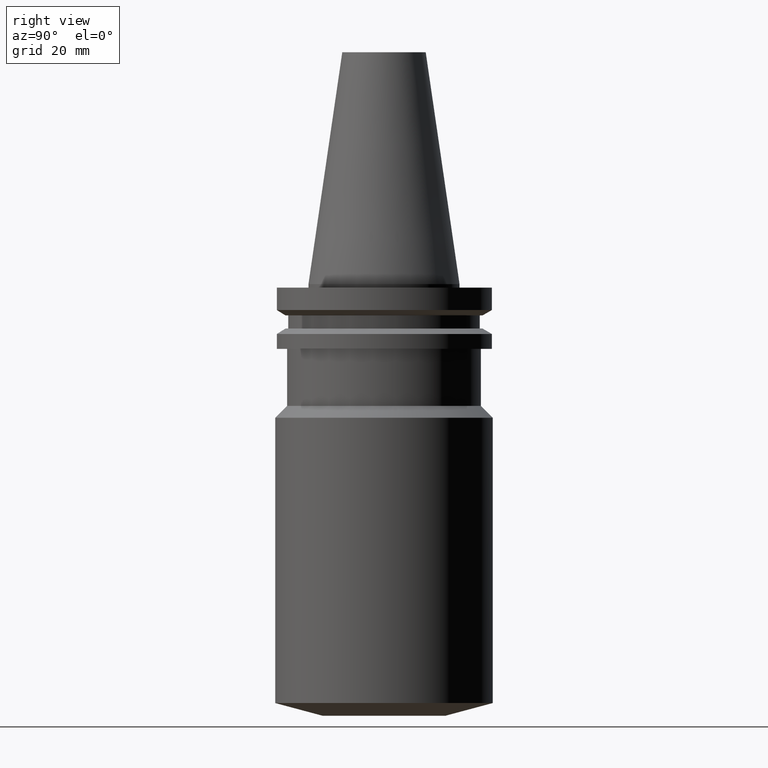
[diagram: clean part render]
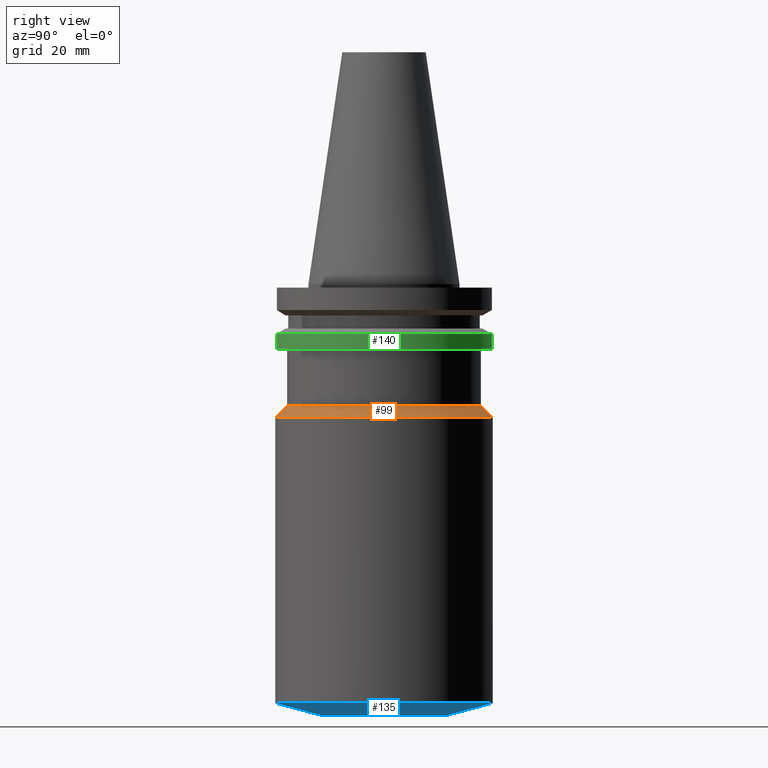
[diagram: same view with three faces highlighted in distinct colors, each labeled with its STEP entity id]
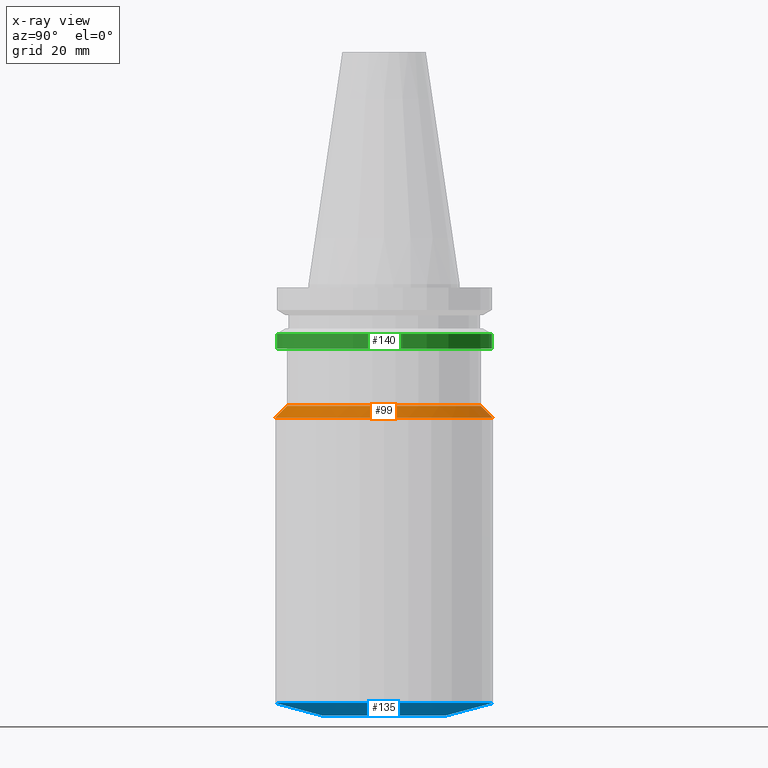
[diagram: x-ray of the same camera — body ghosted, the three highlighted faces saturated]
A machine part, right view with three faces highlighted in distinct colors.
The next image is the same camera in x-ray (body ghosted, the three faces saturated) — at least one of them is partly hidden behind the body in this view.
Their STEP definitions:

[orange] entity #99 — the highlighted conical surface has half-angle 45 deg.
#93=EDGE_CURVE('Unnamed[1]',#216,#216,#217,.T.);
#99=ADVANCED_FACE('Unnamed[1]',(#225,#226),#227,.T.);
#108=EDGE_CURVE('Unnamed[1]',#240,#240,#241,.T.);
#216=VERTEX_POINT('',#371);
#217=CIRCLE('',#372,28.4999999999991);
#225=FACE_BOUND('',#382,.T.);
#226=FACE_BOUND('',#383,.T.);
#227=CONICAL_SURFACE('',#384,30.2500000000389,0.785398163397475);
#240=VERTEX_POINT('',#401);
#241=CIRCLE('',#402,32.0000000000786);
#371=CARTESIAN_POINT('',(2.19211777047378E-015,28.4999999999991,-35.8000000000003));
#372=AXIS2_PLACEMENT_3D('',#530,#531,#532);
#382=EDGE_LOOP('',(#540));
#383=EDGE_LOOP('',(#541));
#384=AXIS2_PLACEMENT_3D('',#542,#543,#544);
#401=CARTESIAN_POINT('',(2.40643096032942E-015,32.0000000000786,-39.3000000000795));
#402=AXIS2_PLACEMENT_3D('',#557,#558,#559);
#530=CARTESIAN_POINT('',(2.19211777047378E-015,4.38423554094756E-015,-35.8000000000003));
#531=DIRECTION('',(6.12323399573677E-017,1.22464679914725E-016,-1.0));
#532=DIRECTION('',(-1.23259516440787E-032,1.0,1.22464679914725E-016));
#540=ORIENTED_EDGE('',*,*,#108,.F.);
#541=ORIENTED_EDGE('',*,*,#93,.T.);
#542=CARTESIAN_POINT('',(2.2992743654016E-015,4.5985487308032E-015,-37.5500000000399));
#543=DIRECTION('',(6.12323399573677E-017,1.22464679914691E-016,-1.0));
#544=DIRECTION('',(-1.23259516440803E-032,1.0,1.22464679914691E-016));
#557=CARTESIAN_POINT('',(2.40643096032942E-015,4.81286192065884E-015,-39.3000000000795));
#558=DIRECTION('',(6.12323399573677E-017,1.22464679914763E-016,-1.0));
#559=DIRECTION('',(-1.23259516440761E-032,1.0,1.22464679914763E-016));

[blue] entity #135 — the highlighted conical surface has half-angle 75 deg.
#91=EDGE_CURVE('Unnamed[1]',#213,#213,#214,.T.);
#112=EDGE_CURVE('Unnamed[1]',#246,#246,#247,.T.);
#135=ADVANCED_FACE('Unnamed[1]',(#279,#280),#281,.T.);
#213=VERTEX_POINT('',#367);
#214=CIRCLE('',#368,18.0000000000002);
#246=VERTEX_POINT('',#409);
#247=CIRCLE('',#410,31.9999999999987);
#279=FACE_BOUND('',#449,.T.);
#280=FACE_BOUND('',#450,.T.);
#281=CONICAL_SURFACE('',#451,24.9999999999995,1.30899693899575);
#367=CARTESIAN_POINT('',(7.77650717458561E-015,18.0000000000003,-126.999999999999));
#368=AXIS2_PLACEMENT_3D('',#527,#528,#529);
#409=CARTESIAN_POINT('',(7.54680698999421E-015,31.9999999999988,-123.248711305963));
#410=AXIS2_PLACEMENT_3D('',#563,#564,#565);
#449=EDGE_LOOP('',(#599));
#450=EDGE_LOOP('',(#600));
#451=AXIS2_PLACEMENT_3D('',#601,#602,#603);
#527=CARTESIAN_POINT('',(7.77650717458561E-015,1.55530143491712E-014,-126.999999999999));
#528=DIRECTION('',(6.12323399573677E-017,1.22464679914691E-016,-1.0));
#529=DIRECTION('',(-1.23259516440781E-032,1.0,1.22464679914691E-016));
#563=CARTESIAN_POINT('',(7.54680698999421E-015,1.50936139799884E-014,-123.248711305963));
#564=DIRECTION('',(6.12323399573677E-017,1.22464679914765E-016,-1.0));
#565=DIRECTION('',(-1.23259516440788E-032,1.0,1.22464679914765E-016));
#599=ORIENTED_EDGE('',*,*,#91,.F.);
#600=ORIENTED_EDGE('',*,*,#112,.T.);
#601=CARTESIAN_POINT('',(7.66165708228991E-015,1.53233141645798E-014,-125.124355652981));
#602=DIRECTION('',(-6.12323399573677E-017,-1.22464679914674E-016,1.0));
#603=DIRECTION('',(-1.23259516440786E-032,1.0,1.22464679914674E-016));

[green] entity #140 — the highlighted cylindrical surface (bore or boss wall) has radius 31.75 mm, axis along (0, 0, -1).
#104=EDGE_CURVE('Unnamed[1]',#234,#234,#235,.T.);
#110=EDGE_CURVE('Unnamed[1]',#243,#243,#244,.T.);
#140=ADVANCED_FACE('Unnamed[1]',(#287,#288),#289,.T.);
#234=VERTEX_POINT('',#393);
#235=CIRCLE('',#394,31.75);
#243=VERTEX_POINT('',#405);
#244=CIRCLE('',#406,31.75);
#287=FACE_BOUND('',#459,.T.);
#288=FACE_BOUND('',#460,.T.);
#289=CYLINDRICAL_SURFACE('',#461,31.75);
#393=CARTESIAN_POINT('',(1.16647607618785E-015,31.75,-19.05));
#394=AXIS2_PLACEMENT_3D('',#551,#552,#553);
#405=CARTESIAN_POINT('',(8.97247689112643E-016,31.75,-14.65316677));
#406=AXIS2_PLACEMENT_3D('',#560,#561,#562);
#459=EDGE_LOOP('',(#608));
#460=EDGE_LOOP('',(#609));
#461=AXIS2_PLACEMENT_3D('',#610,#611,#612);
#551=CARTESIAN_POINT('',(1.16647607618785E-015,2.33295215237571E-015,-19.05));
#552=DIRECTION('',(6.12323399573677E-017,1.22464679914714E-016,-1.0));
#553=DIRECTION('',(-1.23259516440783E-032,1.0,1.22464679914714E-016));
#560=CARTESIAN_POINT('',(8.97247689112643E-016,1.79449537822529E-015,-14.65316677));
#561=DIRECTION('',(6.12323399573677E-017,1.22464679914714E-016,-1.0));
#562=DIRECTION('',(-1.23259516440783E-032,1.0,1.22464679914714E-016));
#608=ORIENTED_EDGE('',*,*,#104,.F.);
#609=ORIENTED_EDGE('',*,*,#110,.T.);
#610=CARTESIAN_POINT('',(1.03186188265025E-015,2.0637237653005E-015,-16.851583385));
#611=DIRECTION('',(6.12323399573677E-017,1.22464679914714E-016,-1.0));
#612=DIRECTION('',(-1.23259516440783E-032,1.0,1.22464679914714E-016));